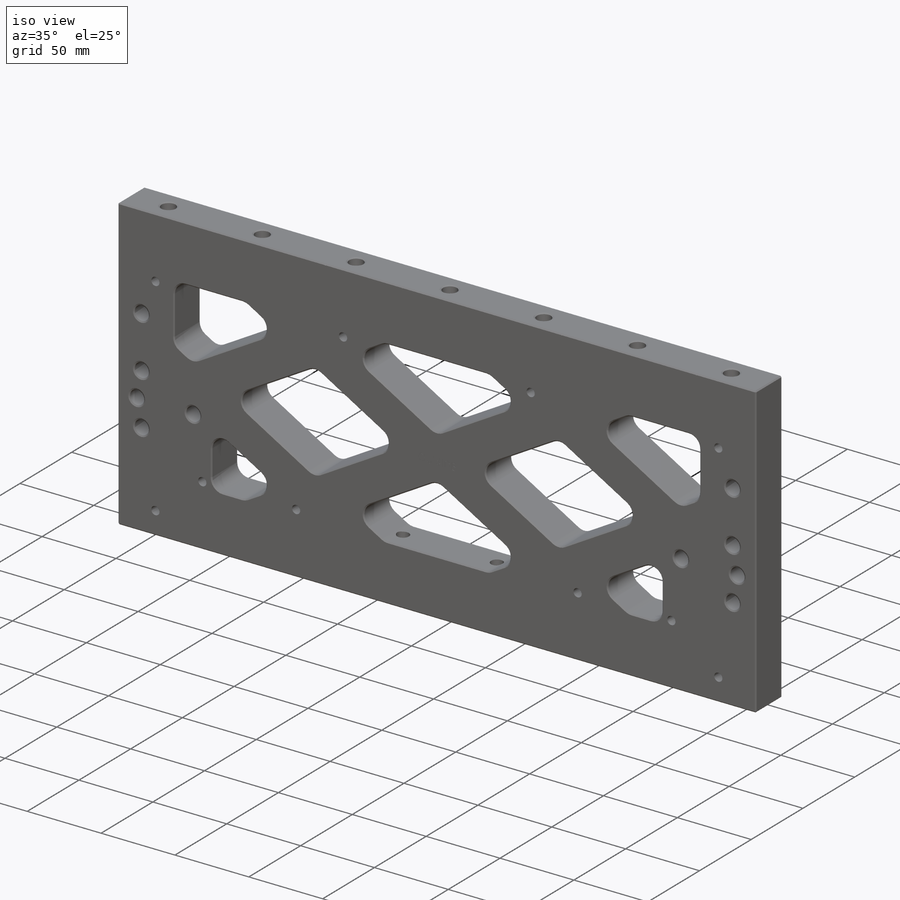
[diagram: iso view]
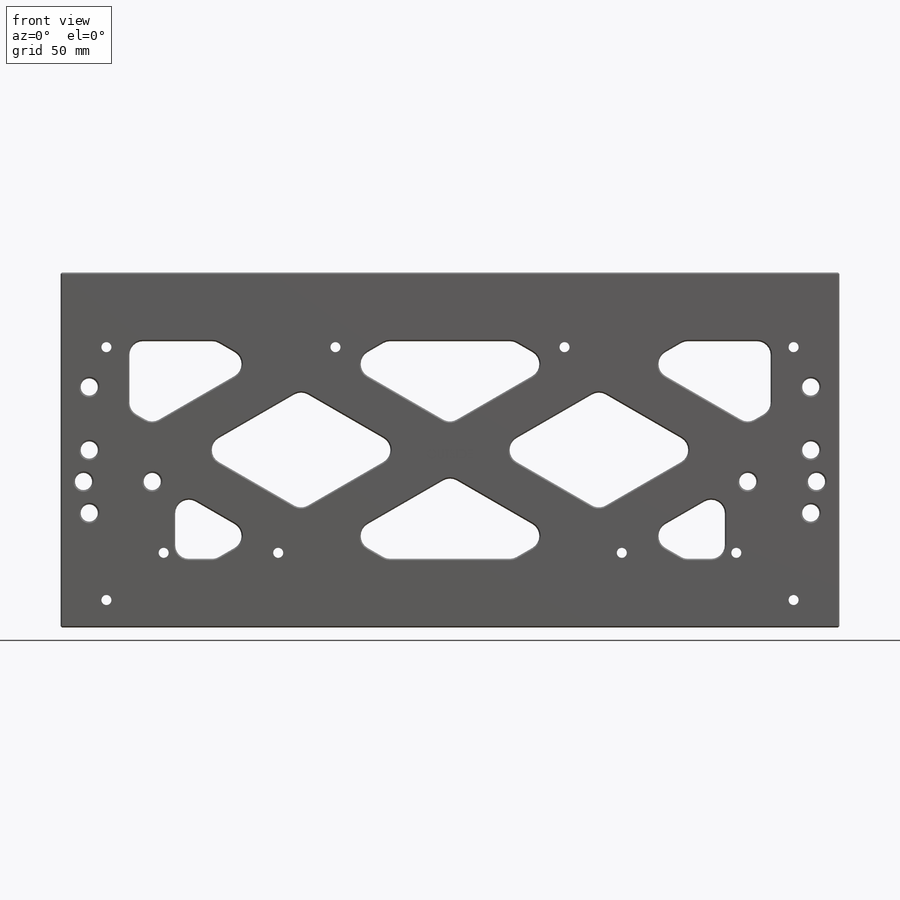
[diagram: front view]
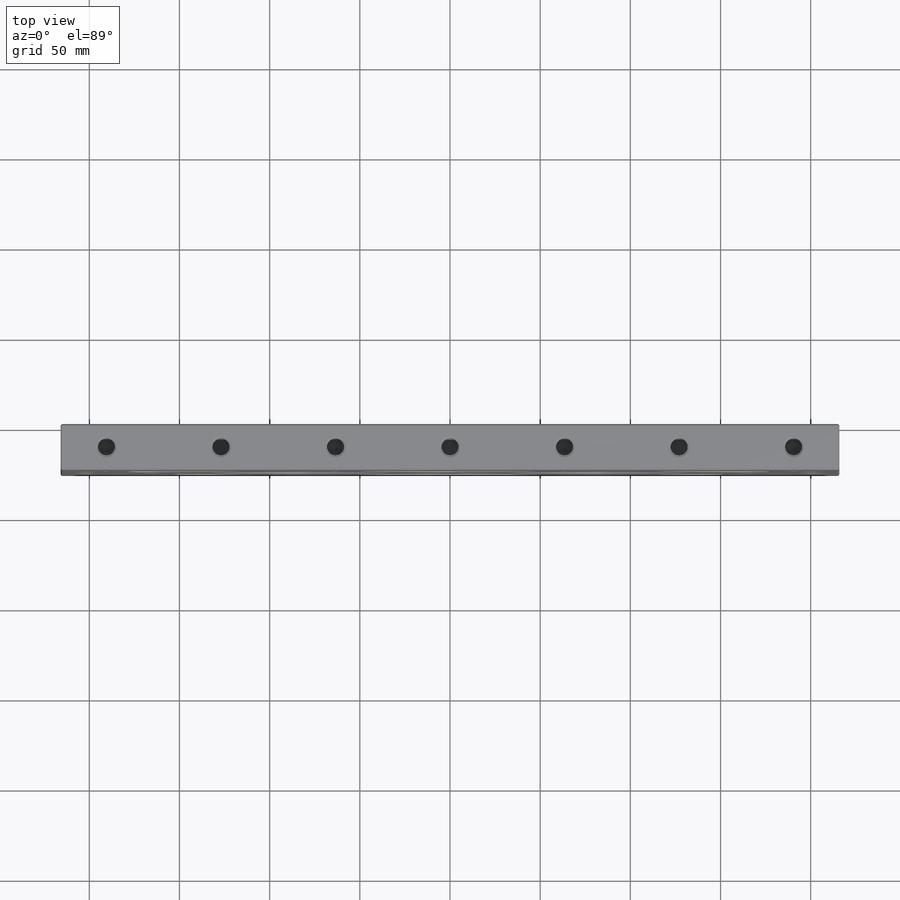
[diagram: top view]
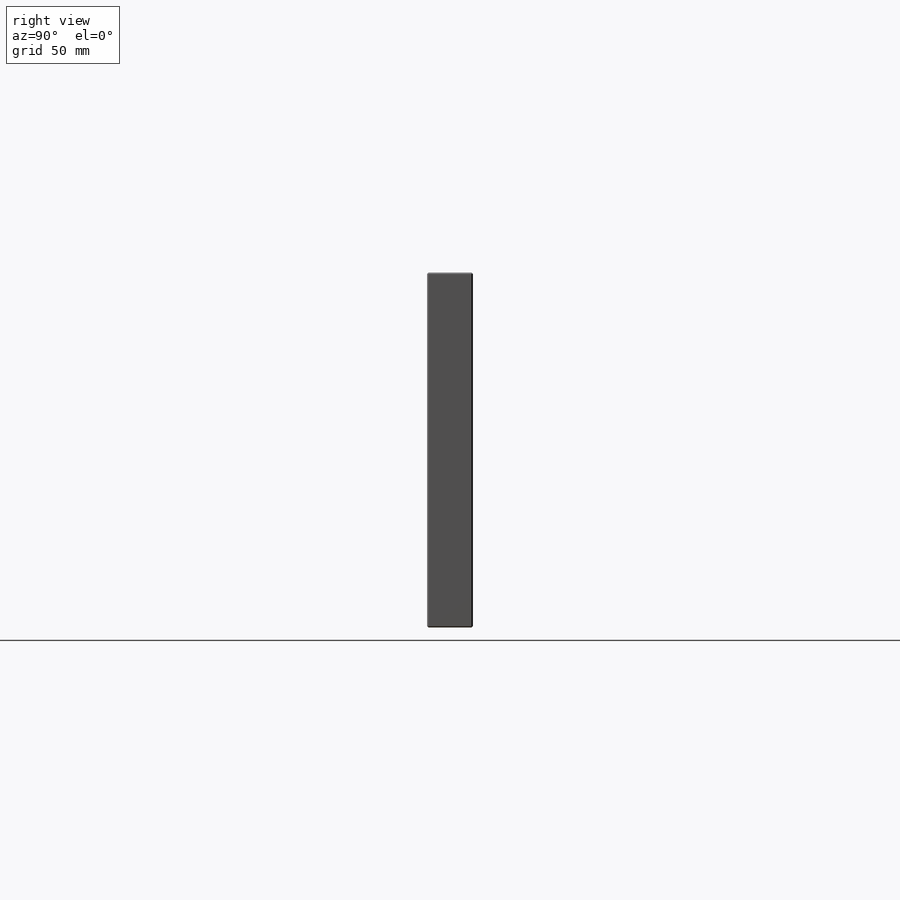
[diagram: right view]
SOLIDWORKS PART (.sldprt)
format: sldprt  version: not decoded by parser v0  size: 1,422,336 bytes
history: native  units: mm
features: sketch x24, hole x9, extrude x3, cut_extrude x3, chamfer x3, material x1, mirror x1, fillet x1 + 1 further entry (+14 scaffold rows collapsed; 1 parser-record rows omitted)
feature tree (61):
  scaffold x14  (default folders/planes/origin — collapsed)
  material  "6061-T6 Al"
  "Origin"  ID=-1
  sketch  "Sketch1"  dims[D1=431.8mm D2=196.85mm]
  extrude  "Extrude1"  Depth=25.4mm
  sketch  "Sketch8"  dims[D1=38.1mm D2=38.1mm]
  cut_extrude  "Extrude2"  [1 undecoded]
  sketch  "Sketch9"  dims[c1.D1=~278.343588mm c2.D1=30.0deg c2.D2=25.4mm c2.D3=82.55mm]
  extrude  "Extrude3"  [1 undecoded]
  mirror  "Mirror2"
  sketch  "Sketch56"  dims[D1=25.4mm]
  extrude  "Extrude16"  [1 undecoded]
  fillet  "Fillet1"  Radius=7.62mm
  chamfer  "Chamfer2"  Distance=0.762mm Angle=45deg
  chamfer  "Chamfer6"  Distance=0.762mm Angle=45deg
  hole  "3/8-16 Tapped Hole1"  Diameter=7.9375mm Depth=43.18mm
  sketch  "Sketch7"  dims[D1=63.5mm]
  sketch  "Sketch6"  dims[hole-wizard template sketch: 27 standard entries collapsed; hole parameters kept: c8.Tap Drill Depth=43.18mm c8.Thread Major Dia.=9.525mm c8.Thread Depth=25.4mm c8.Near C'Sink Dia.=11.43mm c8.D6=~4.399409mm c8.Near C'Sink Angle=120.0deg c8.D7=~14.816244mm c8.Drill Angle=118.0deg]
  hole  "3/8-16 Tapped Hole2"  Diameter=7.9375mm Depth=43.18mm
  sketch  "Sketch49"
  sketch  "Sketch48"  dims[hole-wizard template sketch: 27 standard entries collapsed; hole parameters kept: c8.Tap Drill Depth=43.18mm c8.Thread Major Dia.=9.525mm c8.Thread Depth=25.4mm c8.Near C'Sink Dia.=11.43mm c8.D6=~4.399409mm c8.Near C'Sink Angle=120.0deg c8.D7=~14.816244mm c8.Drill Angle=118.0deg]
  hole  "3/8-16 Tapped Hole3"  Diameter=7.9375mm Depth=43.18mm
  sketch  "Sketch27"
  sketch  "Sketch26"  dims[hole-wizard template sketch: 27 standard entries collapsed; hole parameters kept: c8.Tap Drill Depth=43.18mm c8.Thread Major Dia.=9.525mm c8.Thread Depth=25.4mm c8.Near C'Sink Dia.=11.43mm c8.D6=~4.399409mm c8.Near C'Sink Angle=120.0deg c8.D7=~14.816244mm c8.Drill Angle=118.0deg]
  hole  "3/8-16 Tapped Hole4"  Diameter=7.9375mm Depth=43.18mm
  sketch  "Sketch33"
  sketch  "Sketch32"  dims[hole-wizard template sketch: 27 standard entries collapsed; hole parameters kept: c8.Tap Drill Depth=43.18mm c8.Thread Major Dia.=9.525mm c8.Thread Depth=25.4mm c8.Near C'Sink Dia.=11.43mm c8.D6=~4.399409mm c8.Near C'Sink Angle=120.0deg c8.D7=~14.816244mm c8.Drill Angle=118.0deg]
  hole  "7/32 (0.21875) Diameter Hole1"  Diameter=5.55625mm Depth=25.4mm
  sketch  "Sketch3"  dims[c1.D1=63.5mm c1.D2=19.05mm c2.D1=63.5mm c2.D2=19.05mm c3.D1=19.05mm c3.D2=63.5mm c4.D1=36.83mm c4.D3=27.94mm c5.D1=3.81mm c5.D2=3.81mm c6.D1=41.402mm c6.D2=41.402mm]
  sketch  "Sketch2"  dims[hole-wizard template sketch: 61 standard entries collapsed; hole parameters above]
  hole  "3/8-16 Tapped Hole5"  Diameter=9.525mm Depth=25.4mm
  sketch  "Sketch29"  dims[D1=34.925mm D2=15.875mm D3=~8.73125mm]
  sketch  "Sketch28"  dims[hole-wizard template sketch: 46 standard entries collapsed; hole parameters kept: c15.Thread Major Dia.=9.525mm c15.Thru Tap Drill Depth=25.4mm c15.Near C'Sink Dia.=11.43mm c15.D4=~3.666174mm c15.Near C'Sink Angle=120.0deg c15.Far C'Sink Dia.=11.43mm c15.D6=~9.919017mm c15.Far C'Sink Angle=120.0deg]
  hole  "3/8-16 Tapped Hole6"  Diameter=9.525mm Depth=25.4mm
  sketch  "Sketch45"  dims[D1=38.1mm D2=80.9625mm D3=12.7mm]
  sketch  "Sketch44"  dims[hole-wizard template sketch: 46 standard entries collapsed; hole parameters kept: c15.Thread Major Dia.=9.525mm c15.Thru Tap Drill Depth=25.4mm c15.Near C'Sink Dia.=11.43mm c15.D4=~3.666174mm c15.Near C'Sink Angle=120.0deg c15.Far C'Sink Dia.=11.43mm c15.D6=~9.919017mm c15.Far C'Sink Angle=120.0deg]
  parser-record x1  (decoder bookkeeping rows leaked as tree rows — omitted from the tree; the rows remain in map.json)
  hole  "3/8 (0.375) Diameter Hole1"  Diameter=9.54278mm Depth=19.05mm
  sketch  "Sketch52"  dims[D1=381.0mm]
  sketch  "Sketch51"  dims[hole-wizard template sketch: 46 standard entries collapsed; hole parameters above]
  sketch  "Sketch53"  dims[D1=9.5504mm D2=5.08mm]
  cut_extrude  "Extrude15"  Depth=19.05mm
  chamfer  "Chamfer5"  Distance=2.286mm Angle=45deg
  hole  "7/32 (0.21875) Diameter Hole2"  Diameter=5.55625mm Depth=25.4mm
  sketch  "Sketch55"  dims[D1=15.24mm]
  sketch  "Sketch54"  dims[hole-wizard template sketch: 61 standard entries collapsed; hole parameters above]
  sketch  "Sketch59"
  cut_extrude  "Extrude17"  Depth=0.0254mm
decode coverage: 36 of 44 modeling features carry decoded parameters; 1 rows unclassified (native names shown)
note: ~ marks probable driven/reference dimensions
note: 3 parameter values undecoded
summary: Diameter pulled from absorbed wizard sketch | no parameter record found for 3 features
note: suppression state not decoded; provenance and decode notes live in map.json
